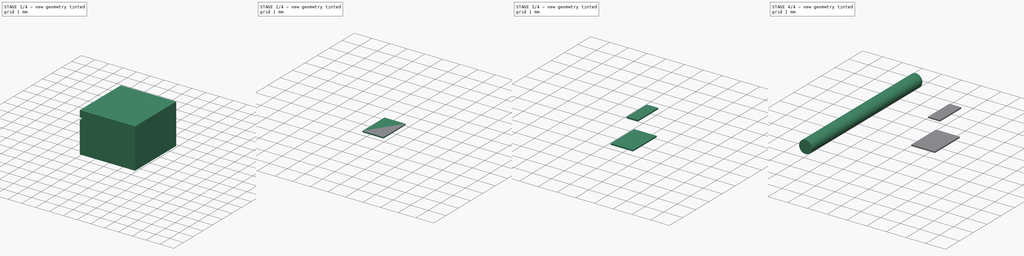
[diagram: build sequence overview — one tinted view per stage of 4, left to right]
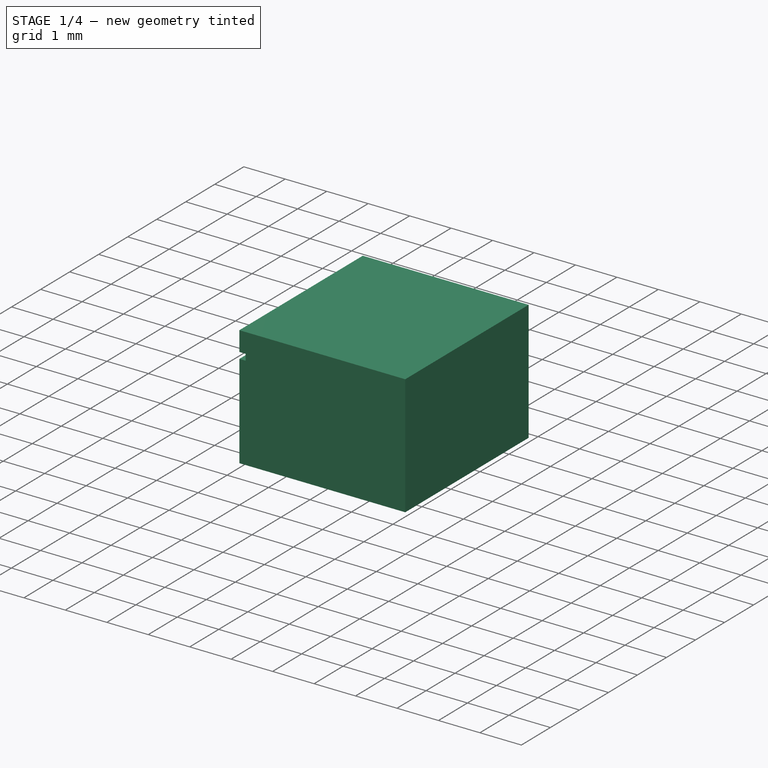
[diagram: stage 1 of 4 — iso view after this stage's code; geometry added in this stage tinted green]
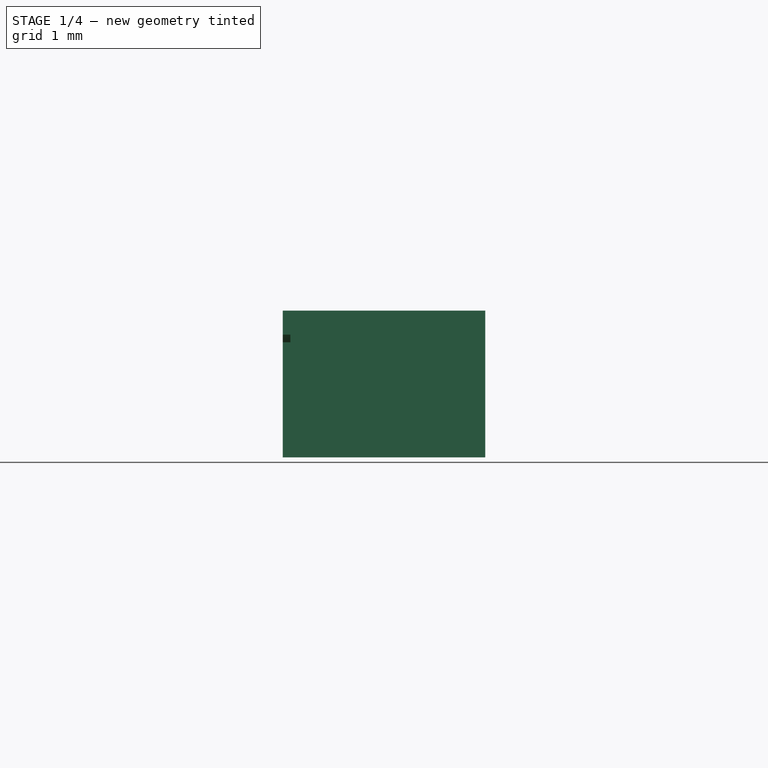
[diagram: stage 1 of 4 — front view after this stage's code; geometry added in this stage tinted green]
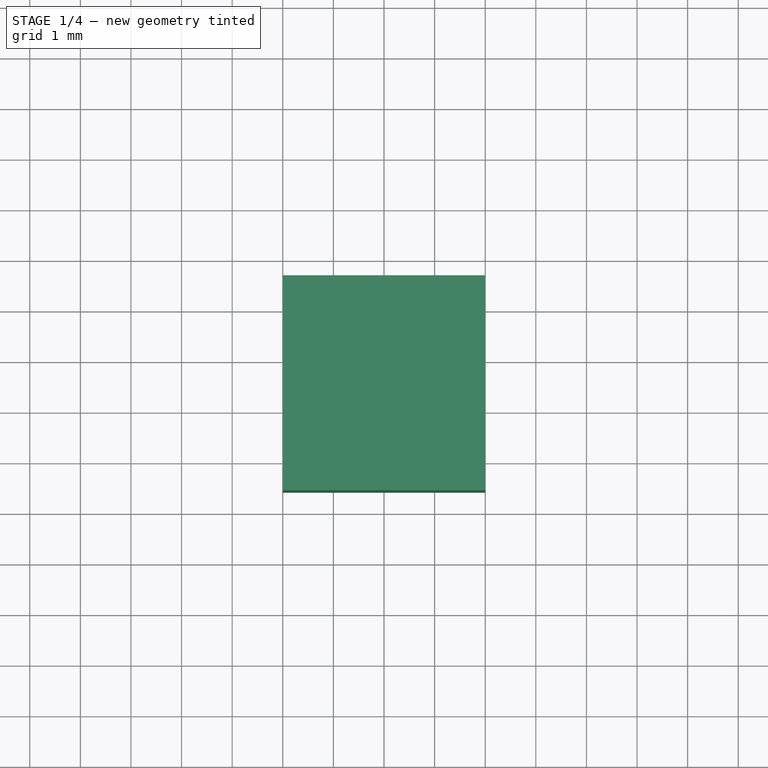
[diagram: stage 1 of 4 — top view after this stage's code; geometry added in this stage tinted green]
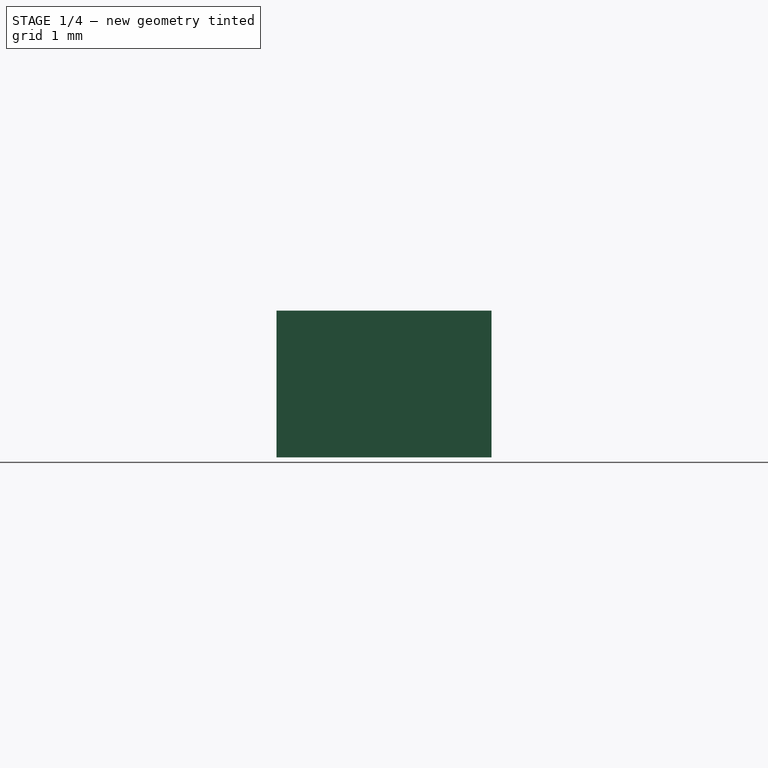
[diagram: stage 1 of 4 — right view after this stage's code; geometry added in this stage tinted green]
FCSTD DOCUMENT  (FreeCAD 1.0R38806 (Git))
Label: JST_SH_SM02B-SRSS-TB_01x02
License: All rights reserved
LicenseURL: http://en.wikipedia.org/wiki/All_rights_reserved
objects: Sketcher::SketchObject×9, PartDesign::Pad×7, PartDesign::Body×7, PartDesign::SubShapeBinder×5, PartDesign::SubtractivePipe×1, PartDesign::Mirrored×1, App::Part×1
note: 56 computed .brp shape members not serialized (recipe doc carries the construction recipe); baked Part::Feature solids carry a one-line shape summary decoded from their .brp

FEATURE [Sketcher::SketchObject] Sketch
  ArcFitTolerance = 1e-06
  AttachmentSupport = -> [YZ_Plane001]
  FullyConstrained = true
  MakeInternals = false
  MapMode = 5
  Placement = pos=(0,0,0) rot=(0.57735,0.57735,0.57735;2.0944rad)
  sketch-geometry (4):
    g0: LineSegment StartX=-2.575 StartY=2.95 StartZ=0 EndX=-2.575 EndY=0.05 EndZ=0
    g1: LineSegment StartX=-2.575 StartY=0.05 StartZ=0 EndX=1.675 EndY=0.05 EndZ=0
    g2: LineSegment StartX=1.675 StartY=0.05 StartZ=0 EndX=1.675 EndY=2.95 EndZ=0
    g3: LineSegment StartX=1.675 StartY=2.95 StartZ=0 EndX=-2.575 EndY=2.95 EndZ=0
  constraints (13):
    c: Coincident(g0,g1)
    c: Coincident(g1,g2)
    c: Coincident(g2,g3)
    c: Coincident(g3,g0)
    c: Vertical(g0)
    c: Vertical(g2)
    c: Horizontal(g1)
    c: Horizontal(g3)
    c: DistanceX(g-1,g2) = 1.675
    c: DistanceX(g0,g-1) = 2.575
    c: DistanceX(g3,g3) = 4.25
    c: DistanceY(g-1,g2) = 2.95
    c: DistanceY(g2,g2) = 2.9
FEATURE [PartDesign::Pad] Pad
  Direction = (1,0,0)
  Length = 4
  Length2 = 10
  Midplane = true
  Placement = pos=(0,0,0) rot=(1,1,1;2.0944rad)
  Profile = -> Sketch
  ReferenceAxis = -> Sketch [N_Axis]
  Refine = true
  Suppressed = false
  Type = 0
FEATURE [PartDesign::Body] Body002  label="Wire 2"
  AllowCompound = false
  Group = -> [Sketch002,Pad002]
  Origin = -> Origin003
  Placement = pos=(1,0,0) rot=(0,0,1;0rad)
  Tip = -> Pad002
FEATURE [Sketcher::SketchObject] Sketch003
  ArcFitTolerance = 1e-06
  AttachmentSupport = -> [YZ_Plane001]
  FullyConstrained = true
  MakeInternals = false
  MapMode = 5
  Placement = pos=(0,0,0) rot=(0.57735,0.57735,0.57735;2.0944rad)
  sketch-geometry (4):
    g0: LineSegment StartX=-3 StartY=2.4 StartZ=0 EndX=-1.95 EndY=2.4 EndZ=0
    g1: LineSegment StartX=-1.6 StartY=2.05 StartZ=0 EndX=-1.6 EndY=0 EndZ=0
    g2: ArcOfCircle CenterX=-1.95 CenterY=2.05 CenterZ=0 NormalX=0 NormalY=0 NormalZ=1 AngleXU=0 Radius=0.35 StartAngle=6e-16 EndAngle=1.5708
    g3: GeomPoint [constr] X=-1.6 Y=2.4 Z=0
  constraints (11):
    c: Horizontal(g0)
    c: Vertical(g1)
    c: PointOnObject(g3,g0)
    c: PointOnObject(g3,g1)
    c: Tangent(g0,g2) = 1.5708
    c: Tangent(g1,g2) = 1.5708
    c: PointOnObject(g1,g-1)
    c: DistanceX(g0,g-1) = 3
    c: DistanceX(g1,g-1) = 1.6
    c: DistanceY(g-1,g0) = 2.4
    c: Radius(g2) = 0.35
FEATURE [Sketcher::SketchObject] Sketch004
  ArcFitTolerance = 1e-06
  AttachmentSupport = -> [XY_Plane001]
  ExternalGeometry = -> [Sketch003]
  FullyConstrained = true
  MakeInternals = false
  MapMode = 5
  sketch-geometry (5):
    g0: LineSegment StartX=-2.1 StartY=-1.525 StartZ=0 EndX=-2.1 EndY=-1.675 EndZ=0
    g1: LineSegment StartX=-2.1 StartY=-1.675 StartZ=0 EndX=-1.85 EndY=-1.675 EndZ=0
    g2: LineSegment StartX=-1.85 StartY=-1.675 StartZ=0 EndX=-1.85 EndY=-1.525 EndZ=0
    g3: LineSegment StartX=-1.85 StartY=-1.525 StartZ=0 EndX=-2.1 EndY=-1.525 EndZ=0
    g4: LineSegment [constr] StartX=-1.85 StartY=-1.6 StartZ=0 EndX=0 EndY=-1.6 EndZ=0
  constraints (14):
    c: Coincident(g0,g1)
    c: Coincident(g1,g2)
    c: Coincident(g2,g3)
    c: Coincident(g3,g0)
    c: Vertical(g0)
    c: Vertical(g2)
    c: Horizontal(g1)
    c: Horizontal(g3)
    c: DistanceX(g2,g-1) = 1.85
    c: DistanceX(g0,g-1) = 2.1
    c: Symmetric(g2,g2,g4)
    c: Coincident(g4,g-3)
    c: Horizontal(g4)
    c: DistanceY(g2,g2) = 0.15
FEATURE [PartDesign::SubtractivePipe] SubtractivePipe
  AuxilleryCurvelinear = true
  AuxillerySpineTangent = false
  BaseFeature = -> Pad
  Binormal = (0,0,0)
  Mode = 0
  Placement = pos=(0,0,0) rot=(1,1,1;2.0944rad)
  Profile = -> Sketch004
  Refine = true
  Spine = -> Sketch003
  SpineTangent = false
  Suppressed = false
  Transformation = 0
  Transition = 0
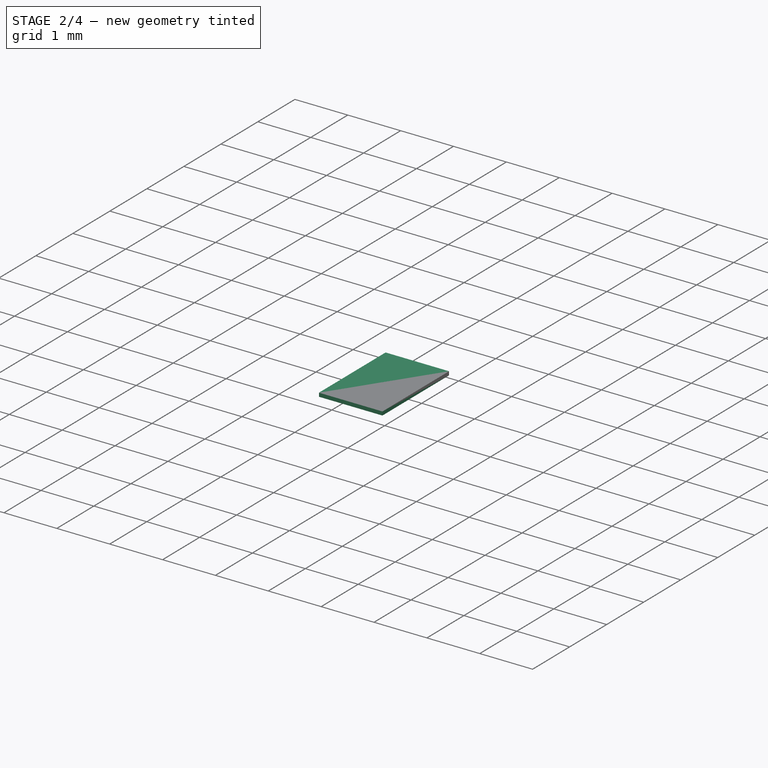
[diagram: stage 2 of 4 — iso view after this stage's code; geometry added in this stage tinted green]
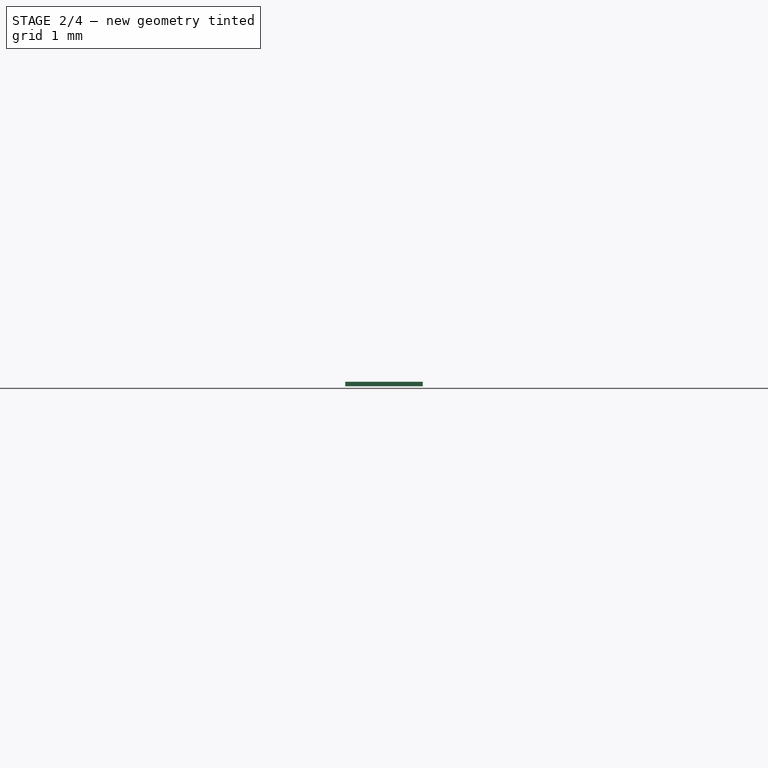
[diagram: stage 2 of 4 — front view after this stage's code; geometry added in this stage tinted green]
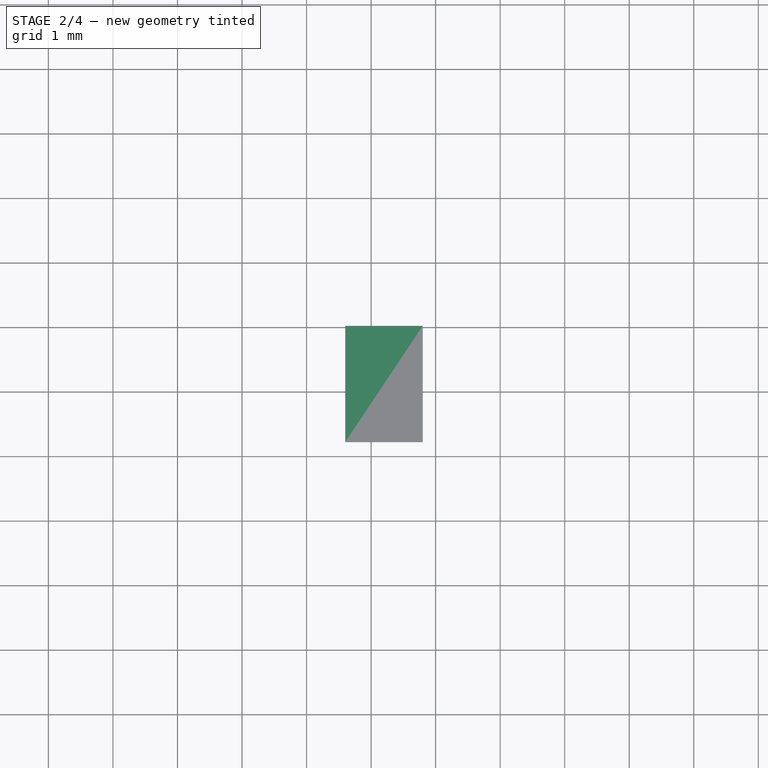
[diagram: stage 2 of 4 — top view after this stage's code; geometry added in this stage tinted green]
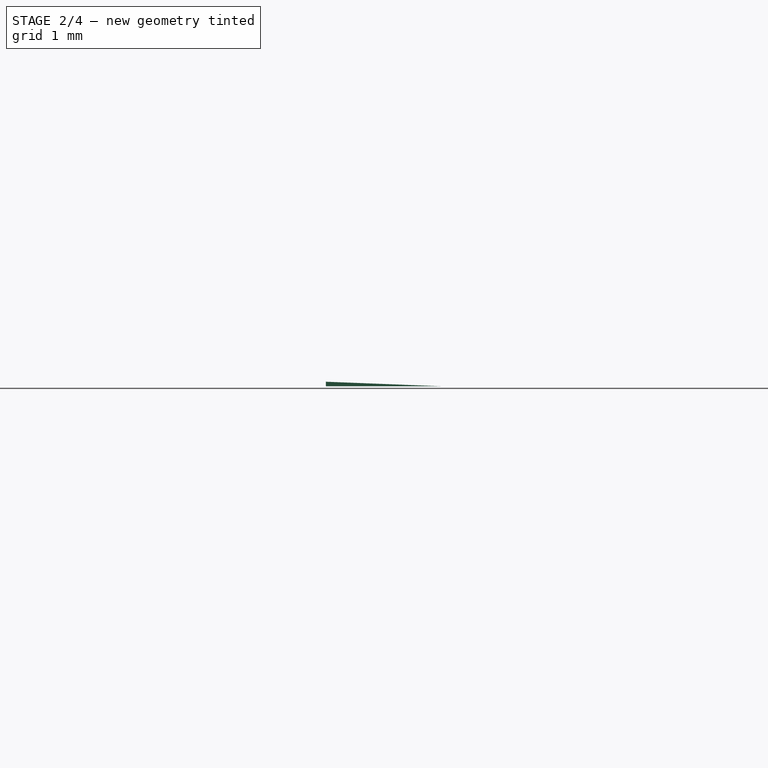
[diagram: stage 2 of 4 — right view after this stage's code; geometry added in this stage tinted green]
FEATURE [PartDesign::Mirrored] Mirrored
  BaseFeature = -> SubtractivePipe
  MirrorPlane = -> YZ_Plane001
  Originals = -> [SubtractivePipe]
  Placement = pos=(0,0,0) rot=(1,1,1;2.0944rad)
  Refine = true
  Suppressed = false
  TransformMode = 0
FEATURE [PartDesign::Body] Body  label="Housing"
  AllowCompound = false
  Group = -> [Sketch,Pad,Sketch003,Sketch004,SubtractivePipe,Mirrored]
  Origin = -> Origin001
  Tip = -> Mirrored
FEATURE [PartDesign::SubShapeBinder] Binder001
  BindCopyOnChange = 0
  BindMode = 0
  ClaimChildren = false
  Context = -> Part [Body003.Binder001.]
  Fuse = false
  MakeFace = true
  OffsetFill = false
  OffsetIntersection = false
  OffsetJoinType = 0
  OffsetOpenResult = false
  PartialLoad = false
  Refine = true
  Relative = true
  Support = -> [Body[Pad.Face2]]
  _Version = 2
FEATURE [Sketcher::SketchObject] Sketch005
  ArcFitTolerance = 1e-06
  AttachmentSupport = -> [XY_Plane004]
  ExternalGeometry = -> [Binder001]
  FullyConstrained = true
  MakeInternals = false
  MapMode = 5
  sketch-geometry (4):
    g0: LineSegment StartX=-2.4 StartY=-0.975 StartZ=0 EndX=-2.4 EndY=-2.775 EndZ=0
    g1: LineSegment StartX=-2.4 StartY=-2.775 StartZ=0 EndX=-1.2 EndY=-2.775 EndZ=0
    g2: LineSegment StartX=-1.2 StartY=-2.775 StartZ=0 EndX=-1.2 EndY=-0.975 EndZ=0
    g3: LineSegment StartX=-1.2 StartY=-0.975 StartZ=0 EndX=-2.4 EndY=-0.975 EndZ=0
  constraints (12):
    c: Coincident(g0,g1)
    c: Coincident(g1,g2)
    c: Coincident(g2,g3)
    c: Coincident(g3,g0)
    c: Vertical(g0)
    c: Vertical(g2)
    c: Horizontal(g1)
    c: Horizontal(g3)
    c: DistanceY(g0,g0) = 1.8
    c: DistanceX(g3,g3) = 1.2
    c: DistanceX(g2,g-1) = 1.2
    c: DistanceY(g0,g-4) = 0.2
FEATURE [PartDesign::Pad] Pad003
  Direction = (0,0,1)
  Length = 0.07
  Length2 = 10
  Profile = -> Sketch005
  ReferenceAxis = -> Sketch005 [N_Axis]
  Refine = true
  Suppressed = false
  Type = 0
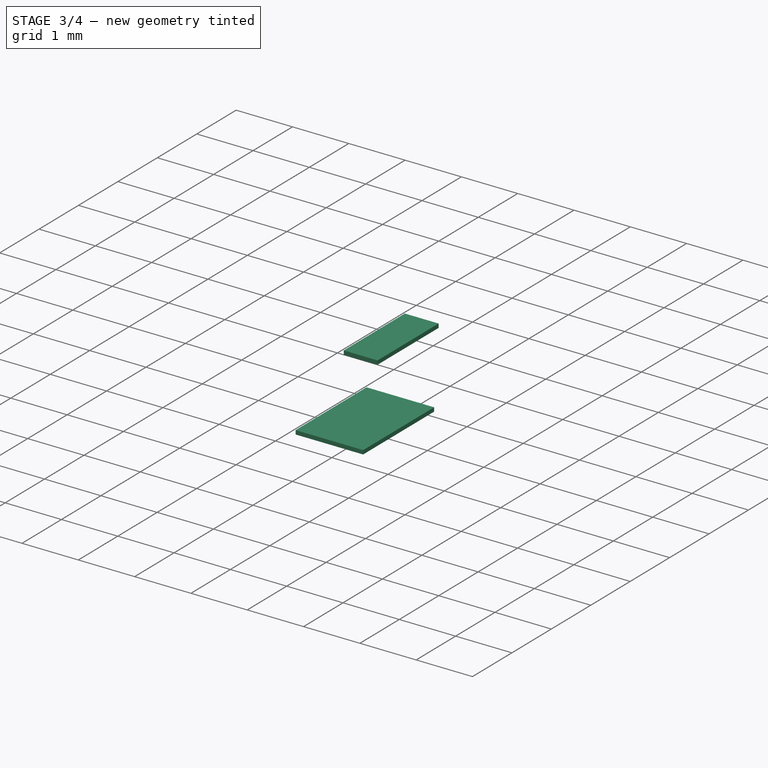
[diagram: stage 3 of 4 — iso view after this stage's code; geometry added in this stage tinted green]
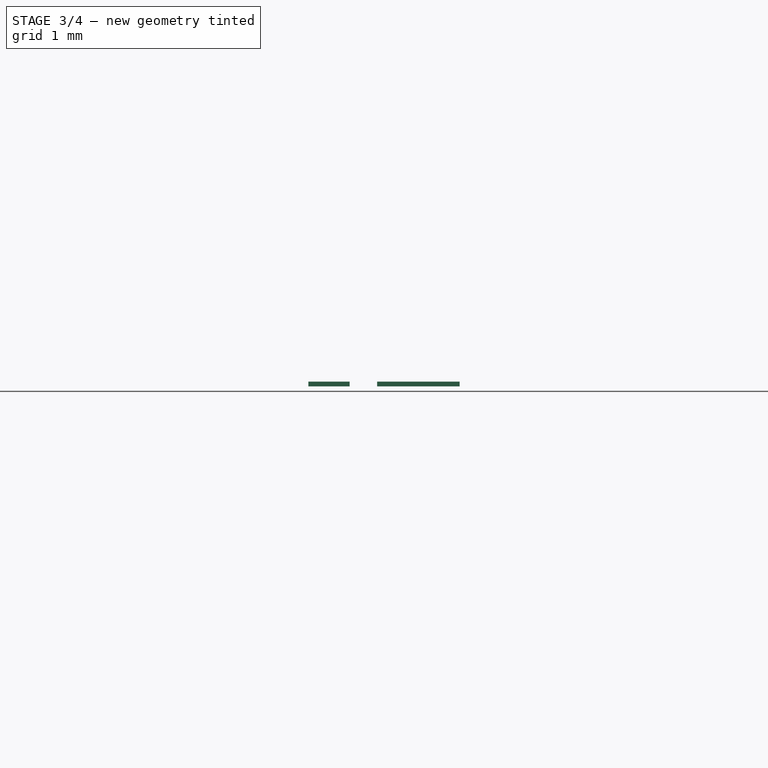
[diagram: stage 3 of 4 — front view after this stage's code; geometry added in this stage tinted green]
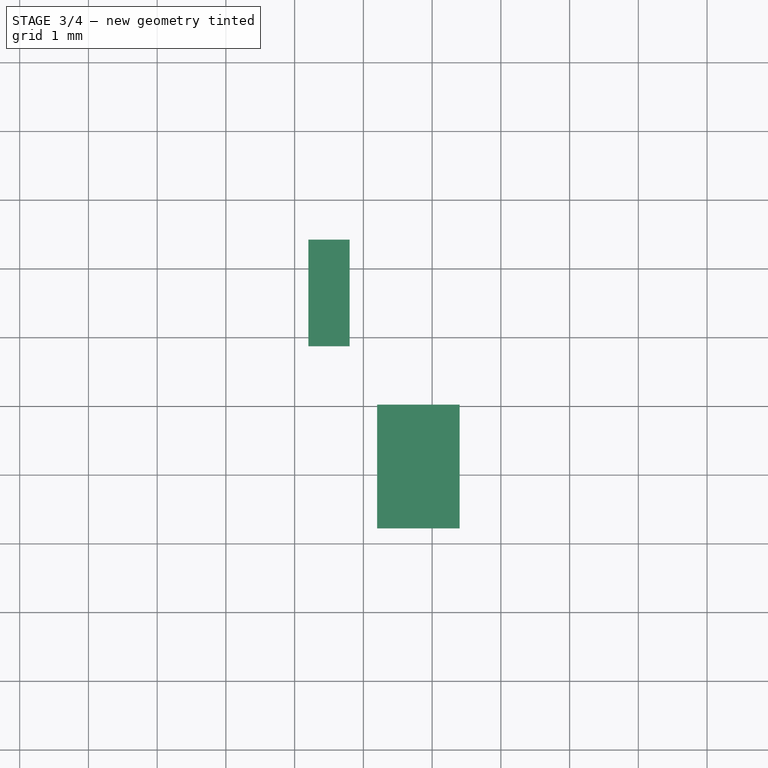
[diagram: stage 3 of 4 — top view after this stage's code; geometry added in this stage tinted green]
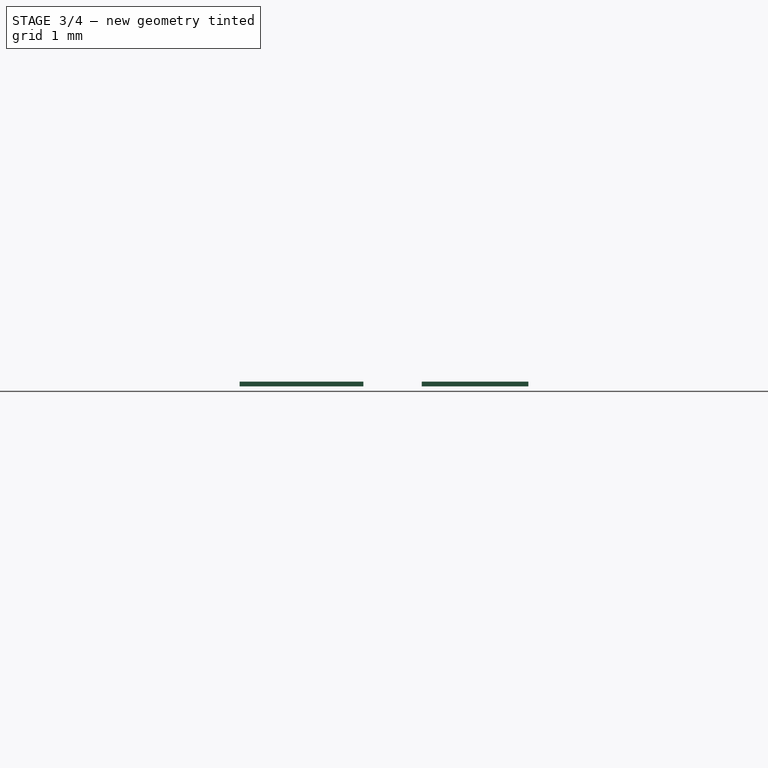
[diagram: stage 3 of 4 — right view after this stage's code; geometry added in this stage tinted green]
FEATURE [PartDesign::Body] Body003  label="Pad1"
  AllowCompound = false
  Group = -> [Binder001,Sketch005,Pad003]
  Origin = -> Origin004
  Tip = -> Pad003
FEATURE [PartDesign::SubShapeBinder] Binder002
  BindCopyOnChange = 0
  BindMode = 0
  ClaimChildren = false
  Context = -> Part [Body004.Binder002.]
  Fuse = false
  MakeFace = true
  OffsetFill = false
  OffsetIntersection = false
  OffsetJoinType = 0
  OffsetOpenResult = false
  PartialLoad = false
  Refine = true
  Relative = true
  Support = -> [Body003[Sketch005.]]
  _Version = 2
FEATURE [Sketcher::SketchObject] Sketch006
  ArcFitTolerance = 1e-06
  AttachmentSupport = -> [XY_Plane005]
  ExternalGeometry = -> [Binder002]
  FullyConstrained = true
  MakeInternals = false
  MapMode = 5
  sketch-geometry (5):
    g0: LineSegment StartX=-0.8 StartY=1.425 StartZ=0 EndX=-0.8 EndY=-0.125 EndZ=0
    g1: LineSegment StartX=-0.8 StartY=-0.125 StartZ=0 EndX=-0.2 EndY=-0.125 EndZ=0
    g2: LineSegment StartX=-0.2 StartY=-0.125 StartZ=0 EndX=-0.2 EndY=1.425 EndZ=0
    g3: LineSegment StartX=-0.2 StartY=1.425 StartZ=0 EndX=-0.8 EndY=1.425 EndZ=0
    g4: LineSegment [constr] StartX=-0.5 StartY=-0.125 StartZ=0 EndX=-0.5 EndY=1.425 EndZ=0
  constraints (14):
    c: Coincident(g0,g1)
    c: Coincident(g1,g2)
    c: Coincident(g2,g3)
    c: Coincident(g3,g0)
    c: Vertical(g0)
    c: Vertical(g2)
    c: Horizontal(g1)
    c: Horizontal(g3)
    c: DistanceX(g1,g1) = 0.6
    c: Symmetric(g1,g1,g4)
    c: Symmetric(g3,g3,g4)
    c: DistanceX(g4,g-1) = 0.5
    c: DistanceY(g-3,g0) = 2.65
    c: DistanceY(g-3,g0) = 4.2
FEATURE [PartDesign::Pad] Pad004
  Direction = (0,0,1)
  Length = 10
  Length2 = 10
  Profile = -> Sketch006
  ReferenceAxis = -> Sketch006 [N_Axis]
  Refine = true
  Suppressed = false
  Type = 3
  UpToFace = -> Pad003 [Face6]
FEATURE [PartDesign::Body] Body004  label="Pad2"
  AllowCompound = false
  Group = -> [Binder002,Sketch006,Pad004]
  Origin = -> Origin005
  Tip = -> Pad004
FEATURE [PartDesign::SubShapeBinder] Binder003
  BindCopyOnChange = 0
  BindMode = 0
  ClaimChildren = false
  Context = -> Part [Body005.Binder003.]
  Fuse = false
  MakeFace = true
  OffsetFill = false
  OffsetIntersection = false
  OffsetJoinType = 0
  OffsetOpenResult = false
  PartialLoad = false
  Refine = true
  Relative = true
  Support = -> [Body004[Sketch006.]]
  _Version = 2
FEATURE [Sketcher::SketchObject] Sketch007
  ArcFitTolerance = 1e-06
  AttachmentSupport = -> [XY_Plane006]
  ExternalGeometry = -> [Binder003]
  FullyConstrained = true
  MakeInternals = false
  MapMode = 5
  sketch-geometry (4):
    g0: LineSegment StartX=0.2 StartY=1.425 StartZ=0 EndX=0.2 EndY=-0.125 EndZ=0
    g1: LineSegment StartX=0.2 StartY=-0.125 StartZ=0 EndX=0.8 EndY=-0.125 EndZ=0
    g2: LineSegment StartX=0.8 StartY=-0.125 StartZ=0 EndX=0.8 EndY=1.425 EndZ=0
    g3: LineSegment StartX=0.8 StartY=1.425 StartZ=0 EndX=0.2 EndY=1.425 EndZ=0
  constraints (10):
    c: Coincident(g0,g1)
    c: Coincident(g1,g2)
    c: Coincident(g2,g3)
    c: Coincident(g3,g0)
    c: Vertical(g0)
    c: Vertical(g2)
    c: Horizontal(g1)
    c: Horizontal(g3)
    c: Symmetric(g0,g-3,g-2)
    c: Symmetric(g1,g-4,g-2)
FEATURE [PartDesign::Pad] Pad005
  Direction = (0,0,1)
  Length = 10
  Length2 = 10
  Profile = -> Sketch007
  ReferenceAxis = -> Sketch007 [N_Axis]
  Refine = true
  Suppressed = false
  Type = 3
  UpToFace = -> Pad003 [Face6]
FEATURE [PartDesign::Body] Body005  label="Pad3"
  AllowCompound = false
  Group = -> [Binder003,Sketch007,Pad005]
  Origin = -> Origin006
  Tip = -> Pad005
FEATURE [PartDesign::SubShapeBinder] Binder004
  BindCopyOnChange = 0
  BindMode = 0
  ClaimChildren = false
  Context = -> Part [Body006.Binder004.]
  Fuse = false
  MakeFace = true
  OffsetFill = false
  OffsetIntersection = false
  OffsetJoinType = 0
  OffsetOpenResult = false
  PartialLoad = false
  Refine = true
  Relative = true
  Support = -> [Body003[Sketch005.]]
  _Version = 2
FEATURE [Sketcher::SketchObject] Sketch008
  ArcFitTolerance = 1e-06
  AttachmentSupport = -> [XY_Plane007]
  ExternalGeometry = -> [Binder004]
  FullyConstrained = true
  MakeInternals = false
  MapMode = 5
  sketch-geometry (4):
    g0: LineSegment StartX=1.2 StartY=-0.975 StartZ=0 EndX=1.2 EndY=-2.775 EndZ=0
    g1: LineSegment StartX=1.2 StartY=-2.775 StartZ=0 EndX=2.4 EndY=-2.775 EndZ=0
    g2: LineSegment StartX=2.4 StartY=-2.775 StartZ=0 EndX=2.4 EndY=-0.975 EndZ=0
    g3: LineSegment StartX=2.4 StartY=-0.975 StartZ=0 EndX=1.2 EndY=-0.975 EndZ=0
  constraints (10):
    c: Coincident(g0,g1)
    c: Coincident(g1,g2)
    c: Coincident(g2,g3)
    c: Coincident(g3,g0)
    c: Vertical(g0)
    c: Vertical(g2)
    c: Horizontal(g1)
    c: Horizontal(g3)
    c: Symmetric(g2,g-4,g-2)
    c: Symmetric(g0,g-3,g-2)
FEATURE [PartDesign::Pad] Pad006
  Direction = (0,0,1)
  Length = 10
  Length2 = 10
  Profile = -> Sketch008
  ReferenceAxis = -> Sketch008 [N_Axis]
  Refine = true
  Suppressed = false
  Type = 3
  UpToFace = -> Pad003 [Face6]
FEATURE [PartDesign::Body] Body006  label="Pad4"
  AllowCompound = false
  Group = -> [Binder004,Sketch008,Pad006]
  Origin = -> Origin007
  Tip = -> Pad006
FEATURE [App::Part] Part  label="JST_SH_SM02B-SRSS-TB_01x02"
  Group = -> [Body,Body001,Body002,Body003,Body004,Body005,Body006]
  Origin = -> Origin
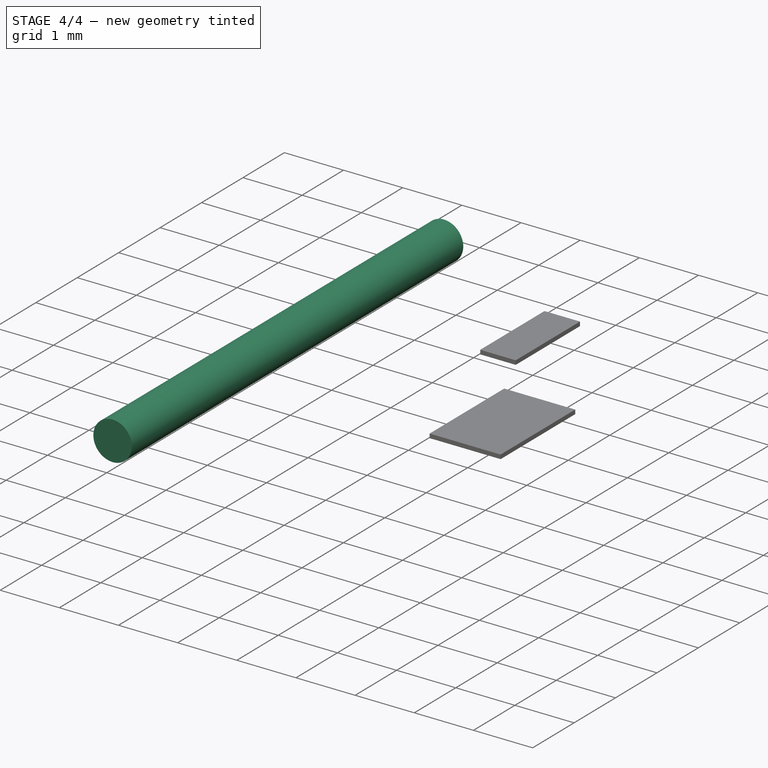
[diagram: stage 4 of 4 — iso view after this stage's code; geometry added in this stage tinted green]
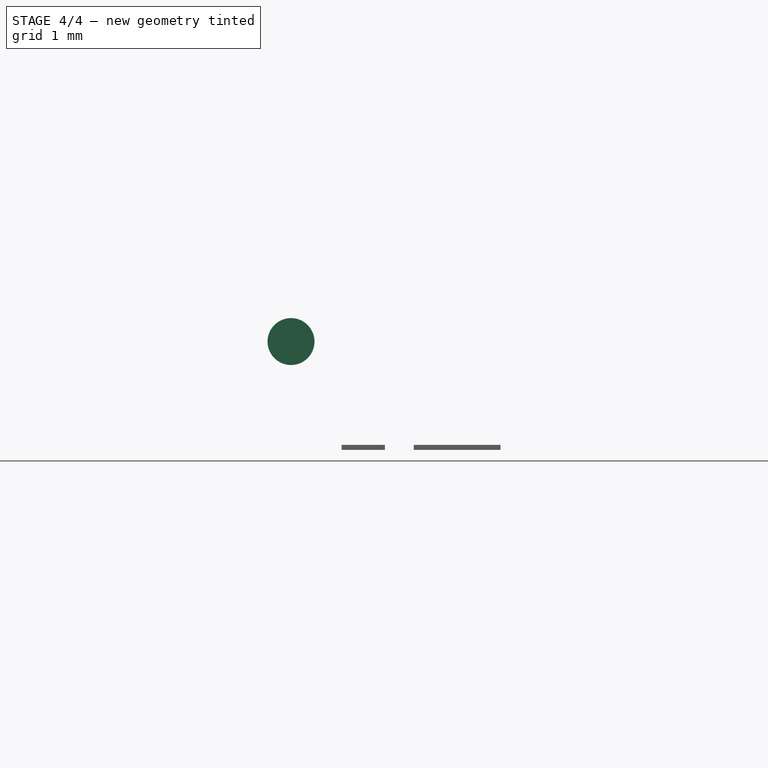
[diagram: stage 4 of 4 — front view after this stage's code; geometry added in this stage tinted green]
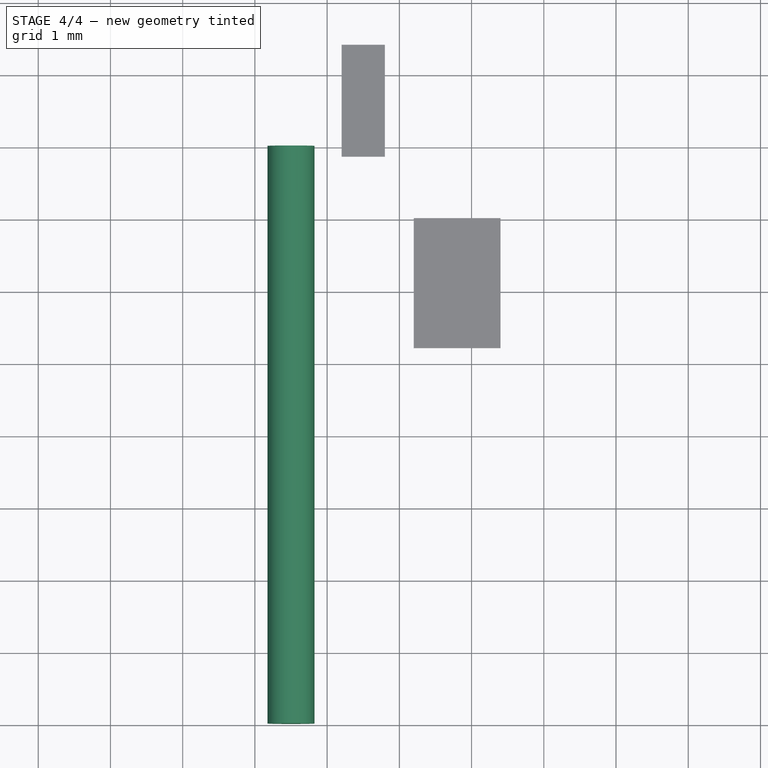
[diagram: stage 4 of 4 — top view after this stage's code; geometry added in this stage tinted green]
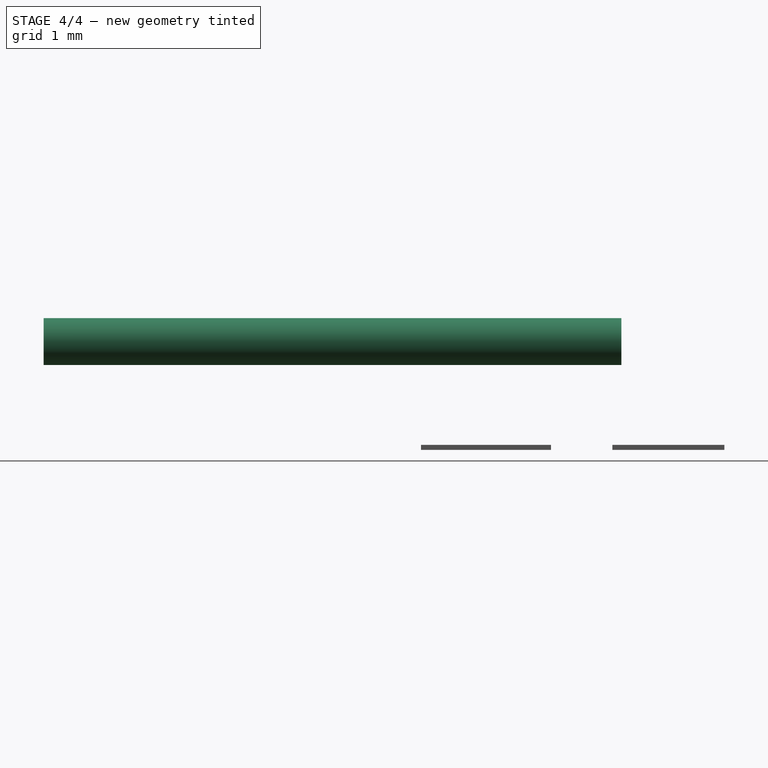
[diagram: stage 4 of 4 — right view after this stage's code; geometry added in this stage tinted green]
FEATURE [PartDesign::SubShapeBinder] Binder
  BindCopyOnChange = 0
  BindMode = 0
  ClaimChildren = false
  Context = -> Part [Body001.Binder.]
  Fuse = false
  MakeFace = true
  OffsetFill = false
  OffsetIntersection = false
  OffsetJoinType = 0
  OffsetOpenResult = false
  PartialLoad = false
  Refine = true
  Relative = true
  Support = -> [Body[Sketch.]]
  _Version = 2
FEATURE [Sketcher::SketchObject] Sketch001
  ArcFitTolerance = 1e-06
  AttachmentSupport = -> [XZ_Plane002]
  ExternalGeometry = -> [Binder]
  FullyConstrained = true
  MakeInternals = false
  MapMode = 5
  Placement = pos=(0,0,0) rot=(1,0,0;1.5708rad)
  sketch-geometry (2):
    g0: Circle CenterX=-0.5 CenterY=1.5 CenterZ=0 NormalX=0 NormalY=0 NormalZ=1 AngleXU=0 Radius=0.325
    g1: LineSegment [constr] StartX=-0.5 StartY=1.5 StartZ=0 EndX=0 EndY=1.5 EndZ=0
  constraints (5):
    c: DistanceX(g0,g-1) = 0.5
    c: Coincident(g1,g0)
    c: Symmetric(g-3,g-3,g1)
    c: Diameter(g0) = 0.65
    c: PointOnObject(g1,g-2)
FEATURE [PartDesign::Pad] Pad001
  Direction = (0,-1,2e-16)
  Length = 8
  Length2 = 10
  Placement = pos=(0,0,0) rot=(1,0,0;1.5708rad)
  Profile = -> Sketch001
  ReferenceAxis = -> Sketch001 [N_Axis]
  Refine = true
  Suppressed = false
  Type = 0
FEATURE [PartDesign::Body] Body001  label="Wire 1"
  AllowCompound = false
  Group = -> [Sketch001,Binder,Pad001]
  Origin = -> Origin002
  Tip = -> Pad001
FEATURE [Sketcher::SketchObject] Sketch002
  ArcFitTolerance = 1e-06
  AttachmentSupport = -> [XZ_Plane002]
  ExternalGeometry = -> [Binder]
  FullyConstrained = true
  MakeInternals = false
  MapMode = 5
  Placement = pos=(0,0,0) rot=(1,0,0;1.5708rad)
  sketch-geometry (2):
    g0: Circle CenterX=-0.5 CenterY=1.5 CenterZ=0 NormalX=0 NormalY=0 NormalZ=1 AngleXU=0 Radius=0.325
    g1: LineSegment [constr] StartX=-0.5 StartY=1.5 StartZ=0 EndX=0 EndY=1.5 EndZ=0
  constraints (5):
    c: DistanceX(g0,g-1) = 0.5
    c: Coincident(g1,g0)
    c: Symmetric(g-3,g-3,g1)
    c: Diameter(g0) = 0.65
    c: PointOnObject(g1,g-2)
FEATURE [PartDesign::Pad] Pad002
  Direction = (0,-1,2e-16)
  Length = 8
  Length2 = 10
  Placement = pos=(0,0,0) rot=(1,0,0;1.5708rad)
  Profile = -> Sketch002
  ReferenceAxis = -> Sketch002 [N_Axis]
  Refine = true
  Suppressed = false
  Type = 0
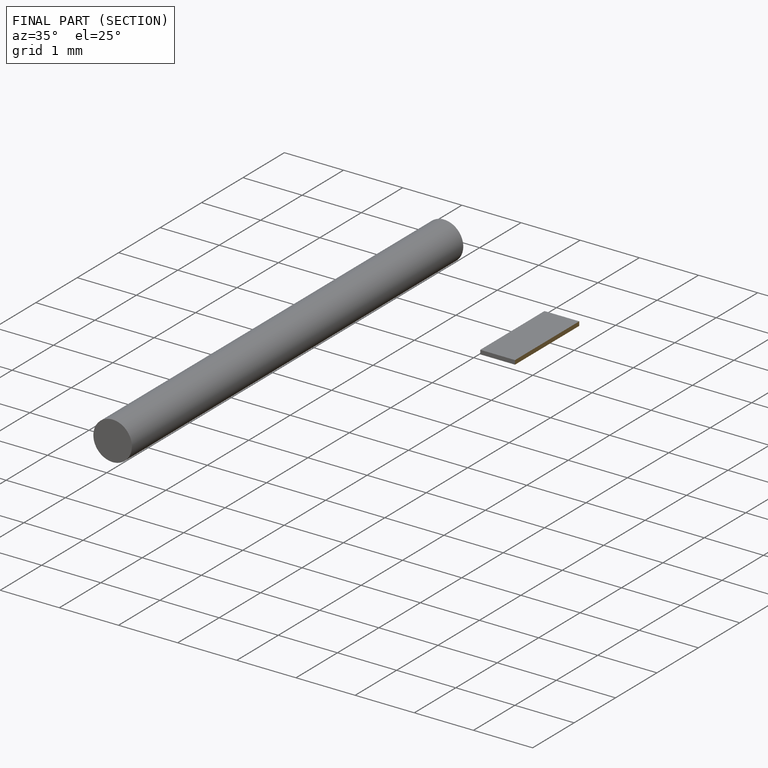
[diagram: finished part — half-section view (interior)]
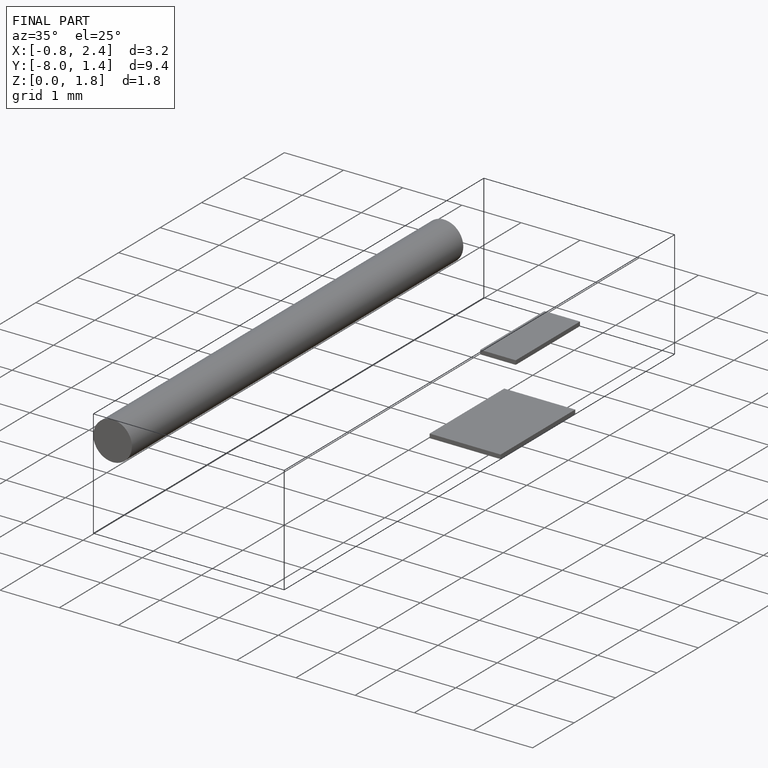
[diagram: finished part — iso view with bounding-box wireframe]
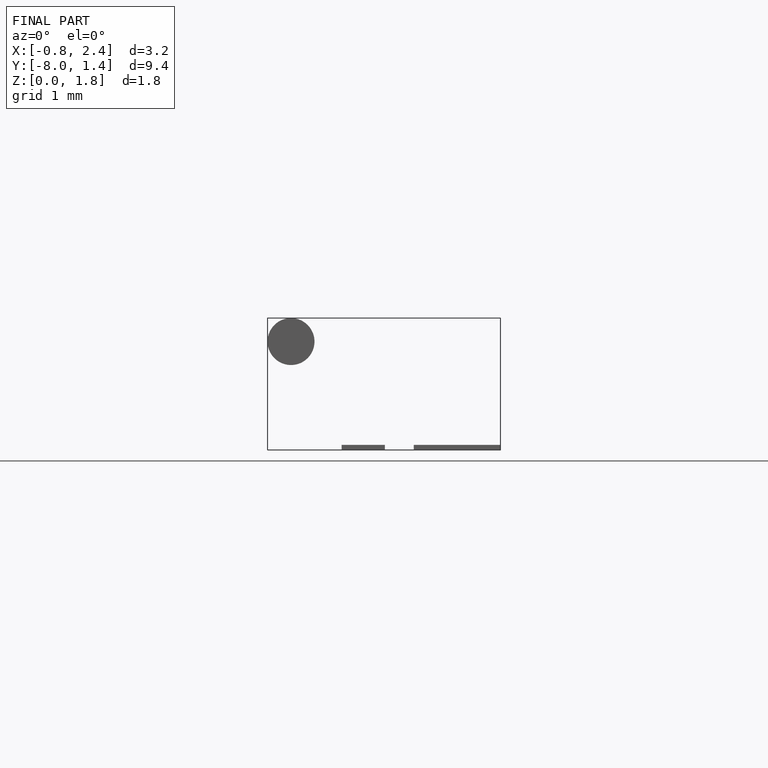
[diagram: finished part — front view with bounding-box wireframe]
